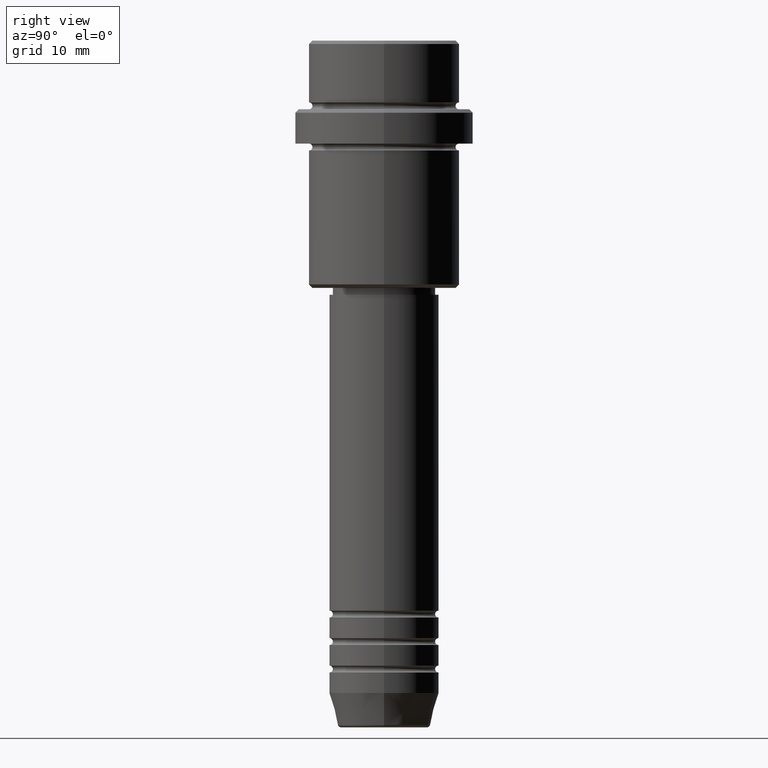
[diagram: clean part render]
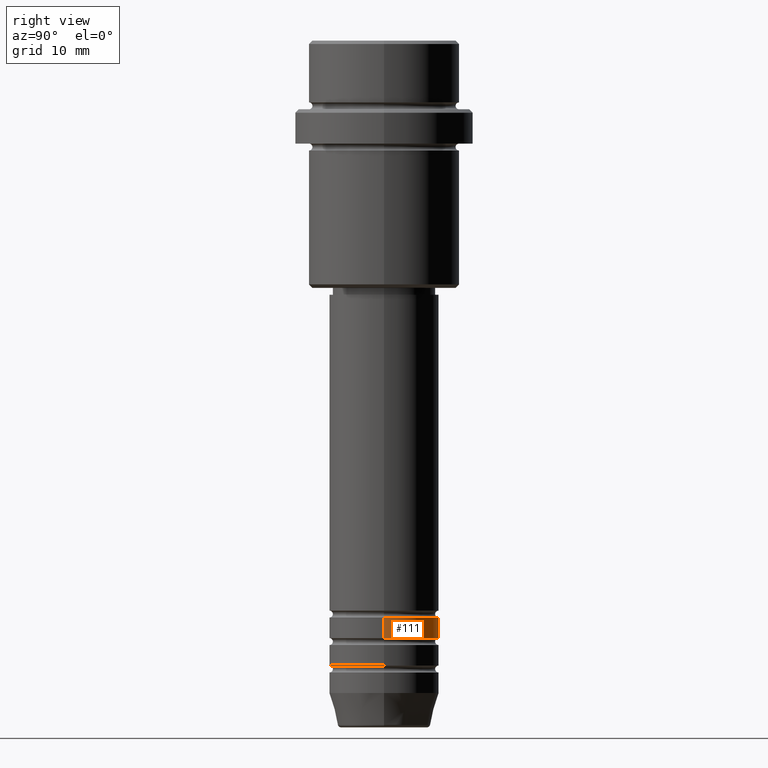
[diagram: same view with one face highlighted and labeled with its STEP entity id]
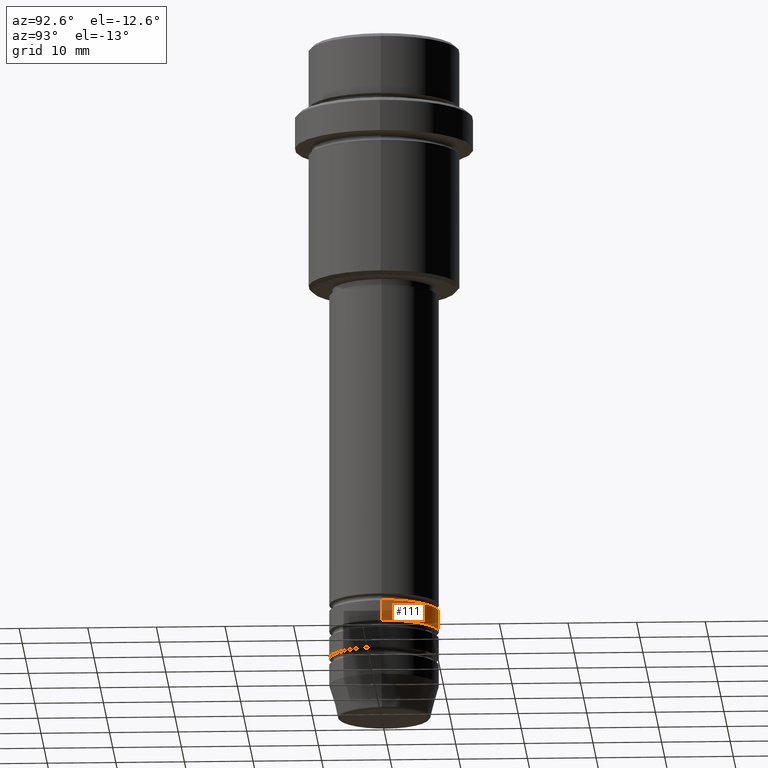
[diagram: same view with one face highlighted and labeled with its STEP entity id]
A machine part, right view. The second image highlights one B-rep face of the part: STEP entity #111.
A second angle (auxiliary view) of the same face is appended — the face is thin or edge-on in the first view.
In plain terms, the highlighted cylindrical surface (partial cylindrical patch) has radius 8 mm, axis along (-0, -0, 1).
Its self-contained STEP definition (entity closure, byte-faithful):
#53 = ORIENTED_EDGE ( 'NONE', *, *, #493, .F. ) ;
#68 = CARTESIAN_POINT ( 'NONE',  ( -8.000000000000000000, 9.797174393178825657E-16, 0.000000000000000000 ) ) ;
#83 = ORIENTED_EDGE ( 'NONE', *, *, #389, .T. ) ;
#84 = VERTEX_POINT ( 'NONE', #662 ) ;
#111 = ADVANCED_FACE ( 'NONE', ( #1076 ), #433, .T. ) ;
#119 = DIRECTION ( 'NONE',  ( -0.000000000000000000, -0.000000000000000000, 1.000000000000000000 ) ) ;
#123 = VERTEX_POINT ( 'NONE', #211 ) ;
#142 = VERTEX_POINT ( 'NONE', #1202 ) ;
#207 = LINE ( 'NONE', #68, #717 ) ;
#211 = CARTESIAN_POINT ( 'NONE',  ( -8.000000000000000000, 9.797174393178825657E-16, -83.99999999999988631 ) ) ;
#259 = VECTOR ( 'NONE', #929, 1000.000000000000000 ) ;
#262 = LINE ( 'NONE', #387, #259 ) ;
#272 = EDGE_CURVE ( 'NONE', #1036, #123, #1046, .T. ) ;
#283 = AXIS2_PLACEMENT_3D ( 'NONE', #637, #303, #736 ) ;
#303 = DIRECTION ( 'NONE',  ( -0.000000000000000000, -0.000000000000000000, 1.000000000000000000 ) ) ;
#323 = DIRECTION ( 'NONE',  ( 1.000000000000000000, 0.000000000000000000, 0.000000000000000000 ) ) ;
#387 = CARTESIAN_POINT ( 'NONE',  ( 8.000000000000000000, 0.000000000000000000, 0.000000000000000000 ) ) ;
#389 = EDGE_CURVE ( 'NONE', #84, #142, #792, .T. ) ;
#433 = CYLINDRICAL_SURFACE ( 'NONE', #283, 8.000000000000000000 ) ;
#473 = AXIS2_PLACEMENT_3D ( 'NONE', #551, #569, #323 ) ;
#493 = EDGE_CURVE ( 'NONE', #84, #1036, #262, .T. ) ;
#551 = CARTESIAN_POINT ( 'NONE',  ( 0.000000000000000000, 0.000000000000000000, -83.99999999999988631 ) ) ;
#566 = ORIENTED_EDGE ( 'NONE', *, *, #272, .F. ) ;
#569 = DIRECTION ( 'NONE',  ( -0.000000000000000000, -0.000000000000000000, 1.000000000000000000 ) ) ;
#637 = CARTESIAN_POINT ( 'NONE',  ( 0.000000000000000000, 0.000000000000000000, 0.000000000000000000 ) ) ;
#662 = CARTESIAN_POINT ( 'NONE',  ( 8.000000000000000000, 0.000000000000000000, -86.99999999999988631 ) ) ;
#717 = VECTOR ( 'NONE', #1280, 1000.000000000000000 ) ;
#736 = DIRECTION ( 'NONE',  ( 1.000000000000000000, 0.000000000000000000, 0.000000000000000000 ) ) ;
#792 = CIRCLE ( 'NONE', #834, 8.000000000000000000 ) ;
#834 = AXIS2_PLACEMENT_3D ( 'NONE', #903, #119, #987 ) ;
#853 = CARTESIAN_POINT ( 'NONE',  ( 8.000000000000000000, 0.000000000000000000, -83.99999999999988631 ) ) ;
#903 = CARTESIAN_POINT ( 'NONE',  ( 0.000000000000000000, 0.000000000000000000, -86.99999999999988631 ) ) ;
#929 = DIRECTION ( 'NONE',  ( -0.000000000000000000, -0.000000000000000000, 1.000000000000000000 ) ) ;
#981 = EDGE_CURVE ( 'NONE', #142, #123, #207, .T. ) ;
#987 = DIRECTION ( 'NONE',  ( 1.000000000000000000, 0.000000000000000000, 0.000000000000000000 ) ) ;
#1036 = VERTEX_POINT ( 'NONE', #853 ) ;
#1046 = CIRCLE ( 'NONE', #473, 8.000000000000000000 ) ;
#1076 = FACE_OUTER_BOUND ( 'NONE', #1117, .T. ) ;
#1117 = EDGE_LOOP ( 'NONE', ( #83, #1290, #566, #53 ) ) ;
#1202 = CARTESIAN_POINT ( 'NONE',  ( -8.000000000000000000, 9.797174393178825657E-16, -86.99999999999988631 ) ) ;
#1280 = DIRECTION ( 'NONE',  ( -0.000000000000000000, -0.000000000000000000, 1.000000000000000000 ) ) ;
#1290 = ORIENTED_EDGE ( 'NONE', *, *, #981, .T. ) ;